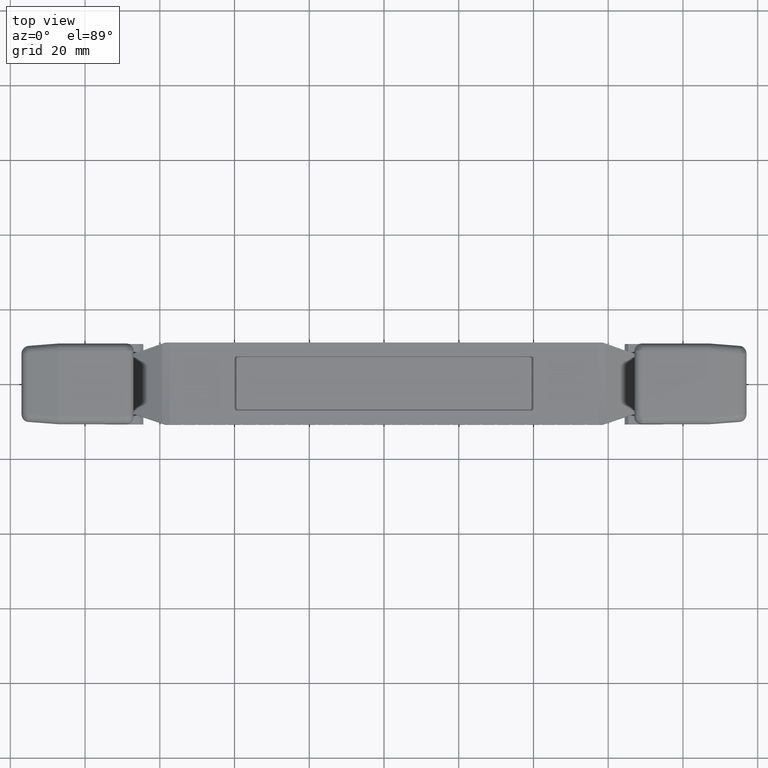
[diagram: clean part render]
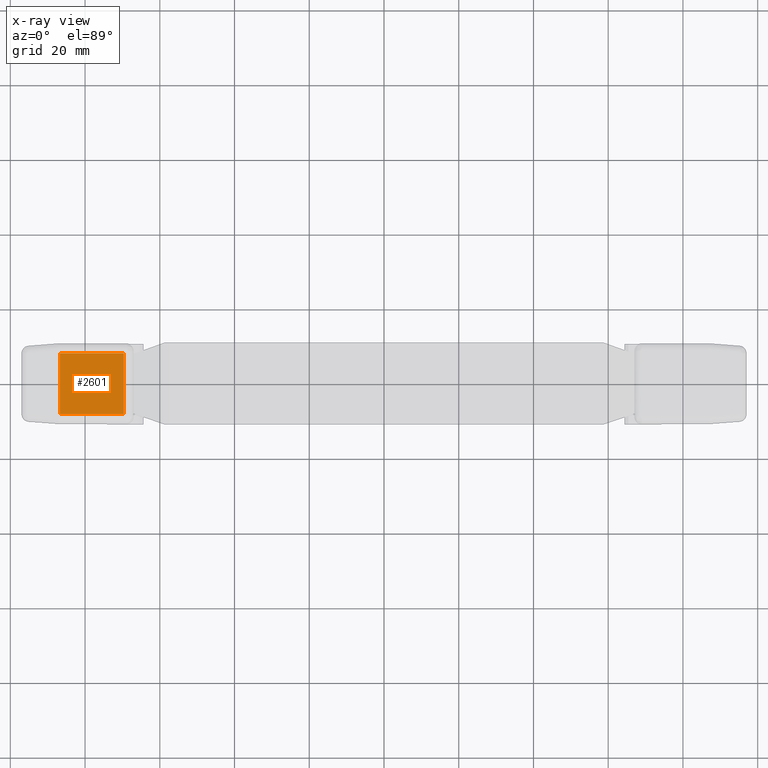
[diagram: x-ray — body ghosted, one internal face saturated and labeled with its STEP entity id]
A machine part, top view, then the same camera in x-ray: the body is ghosted and one INTERNAL B-rep face — a face not visible from any outside direction — is saturated and labeled: STEP entity #2601.
In plain terms, the highlighted face is a freeform B-spline surface patch.
Its self-contained STEP definition (entity closure, byte-faithful):
#2482=CARTESIAN_POINT('',(69.599999999999994,-8.149999999999999,5.399999999999920));
#2483=VERTEX_POINT('',#2482);
#2489=CARTESIAN_POINT('',(86.742459018494486,-8.149999999999999,5.399999999999920));
#2490=VERTEX_POINT('',#2489);
#2491=CARTESIAN_POINT('',(86.742459018494486,-8.149999999999999,5.399999999999920));
#2492=CARTESIAN_POINT('',(69.599999999999994,-8.149999999999999,5.399999999999920));
#2493=QUASI_UNIFORM_CURVE('',1,(#2491,#2492),.UNSPECIFIED.,.F.,.U.);
#2494=EDGE_CURVE('',#2490,#2483,#2493,.T.);
#2540=CARTESIAN_POINT('',(86.742459018494486,8.149999999999901,5.399999999999920));
#2541=VERTEX_POINT('',#2540);
#2547=CARTESIAN_POINT('',(69.599999999999994,8.149999999999901,5.399999999999920));
#2548=VERTEX_POINT('',#2547);
#2549=CARTESIAN_POINT('',(86.742459018494486,8.149999999999901,5.399999999999920));
#2550=CARTESIAN_POINT('',(69.599999999999994,8.149999999999901,5.399999999999920));
#2551=QUASI_UNIFORM_CURVE('',1,(#2549,#2550),.UNSPECIFIED.,.F.,.U.);
#2552=EDGE_CURVE('',#2541,#2548,#2551,.T.);
#2578=CARTESIAN_POINT('',(69.599999999999994,-8.149999999999999,5.399999999999920));
#2579=CARTESIAN_POINT('',(69.599999999999994,8.149999999999901,5.399999999999920));
#2580=QUASI_UNIFORM_CURVE('',1,(#2578,#2579),.UNSPECIFIED.,.F.,.U.);
#2581=EDGE_CURVE('',#2483,#2548,#2580,.T.);
#2586=CARTESIAN_POINT('',(68.743732473550381,-8.964184604146906,5.399999999999920));
#2587=CARTESIAN_POINT('',(87.598727924333829,-8.964184604146906,5.399999999999920));
#2588=CARTESIAN_POINT('',(68.743732473550381,8.964184166946742,5.399999999999920));
#2589=CARTESIAN_POINT('',(87.598727924333829,8.964184166946740,5.399999999999920));
#2590=B_SPLINE_SURFACE_WITH_KNOTS('',1,1,((#2586,#2588),(#2587,#2589)),.UNSPECIFIED.,.F.,.F.,.U.,(2,2),(2,2),(0.0,18.854995450783449),(0.0,17.928368771093648),.UNSPECIFIED.);
#2591=ORIENTED_EDGE('',*,*,#2552,.F.);
#2592=CARTESIAN_POINT('',(86.742459018494486,-8.149999999999999,5.399999999999920));
#2593=CARTESIAN_POINT('',(86.742459018494486,8.149999999999901,5.399999999999920));
#2594=QUASI_UNIFORM_CURVE('',1,(#2592,#2593),.UNSPECIFIED.,.F.,.U.);
#2595=EDGE_CURVE('',#2490,#2541,#2594,.T.);
#2596=ORIENTED_EDGE('',*,*,#2595,.F.);
#2597=ORIENTED_EDGE('',*,*,#2494,.T.);
#2598=ORIENTED_EDGE('',*,*,#2581,.T.);
#2599=EDGE_LOOP('',(#2591,#2596,#2597,#2598));
#2600=FACE_OUTER_BOUND('',#2599,.T.);
#2601=ADVANCED_FACE('',(#2600),#2590,.F.);